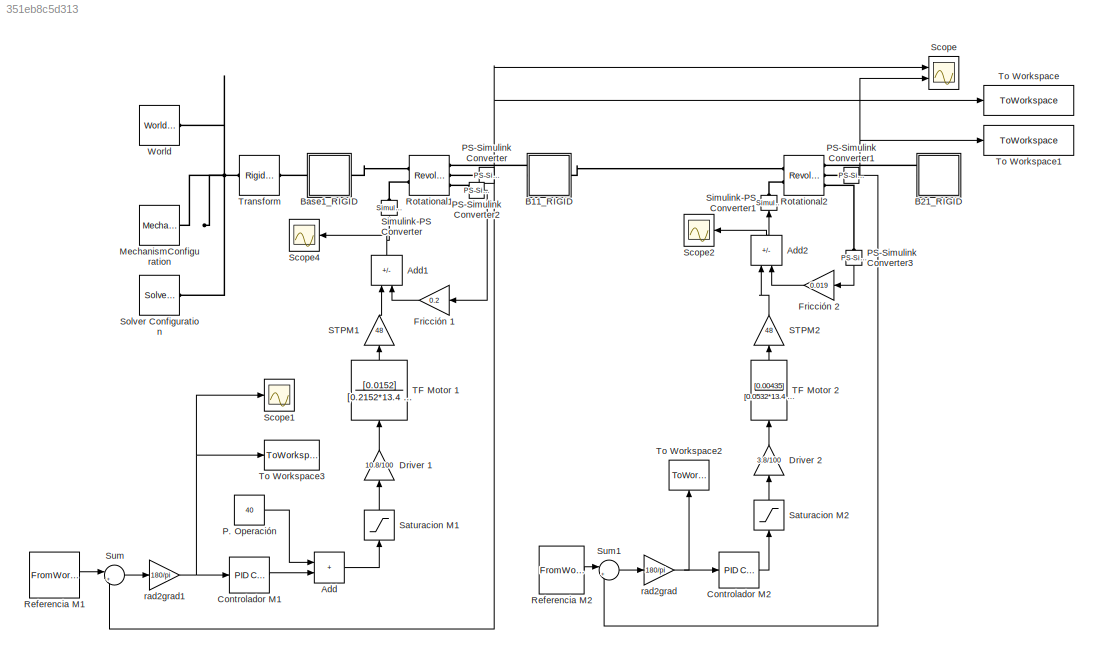
MODEL slx_351eb8c5d313
KIND model
CONFIG AbsTol = auto
CONFIG EnableMultiTasking = off
CONFIG FixedStep = auto
CONFIG MaxStep = auto
CONFIG MinStep = auto
CONFIG RelTol = 1e-3
CONFIG SampleTimeConstraint = Unconstrained
CONFIG SolverName = VariableStepAuto
CONFIG StartTime = 0.0
CONFIG StopTime = 20
WORKSPACE source: external: MATLAB File  (data not in archive)
BLOCK [Sum] Add
  IconShape = rectangular
  Ports = [2, 1]
BLOCK [Sum] Add1
  IconShape = rectangular
  Inputs = +-
  NameLocation = right
  Ports = [2, 1]
BLOCK [Sum] Add2
  IconShape = rectangular
  Inputs = +-
  NameLocation = right
  Ports = [2, 1]
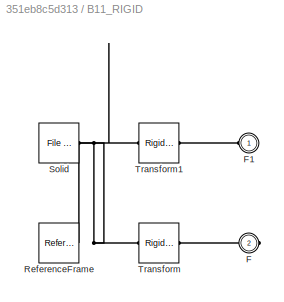
BLOCK [SubSystem] B11_RIGID
  Ports = [0, 0, 0, 0, 0, 1, 1]
  RequestExecContextInheritance = off
BLOCK [PMIOPort] B11_RIGID/F
  Port = 2
  Side = Right
BLOCK [PMIOPort] B11_RIGID/F1
  Side = Left
BLOCK [Reference] B11_RIGID/ReferenceFrame  REF=sm_lib/Frames and
Transforms/Reference
Frame
  Ports = [0, 0, 0, 0, 0, 0, 1]
  SourceBlock = sm_lib/Frames and\nTransforms/Reference\nFrame
  SourceProductBaseCode = MS
  SourceType = Reference\nFrame
BLOCK [Reference] B11_RIGID/Solid  REF=sm_lib/Body Elements/File Solid
  Ports = [0, 0, 0, 0, 0, 0, 1]
  SourceBlock = sm_lib/Body Elements/File Solid
  SourceProductBaseCode = MS
  SourceType = File Solid
BLOCK [Reference] B11_RIGID/Transform  REF=sm_lib/Frames and
Transforms/Rigid
Transform
  Ports = [0, 0, 0, 0, 0, 1, 1]
  SourceBlock = sm_lib/Frames and\nTransforms/Rigid\nTransform
  SourceProductBaseCode = MS
  SourceType = Rigid\nTransform
BLOCK [Reference] B11_RIGID/Transform1  REF=sm_lib/Frames and
Transforms/Rigid
Transform
  Ports = [0, 0, 0, 0, 0, 1, 1]
  SourceBlock = sm_lib/Frames and\nTransforms/Rigid\nTransform
  SourceProductBaseCode = MS
  SourceType = Rigid\nTransform
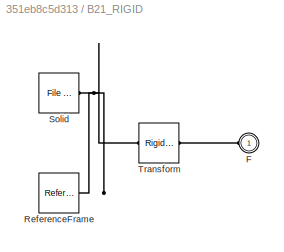
BLOCK [SubSystem] B21_RIGID
  Ports = [0, 0, 0, 0, 0, 1]
  RequestExecContextInheritance = off
BLOCK [PMIOPort] B21_RIGID/F
  Side = Left
BLOCK [Reference] B21_RIGID/ReferenceFrame  REF=sm_lib/Frames and
Transforms/Reference
Frame
  Ports = [0, 0, 0, 0, 0, 0, 1]
  SourceBlock = sm_lib/Frames and\nTransforms/Reference\nFrame
  SourceProductBaseCode = MS
  SourceType = Reference\nFrame
BLOCK [Reference] B21_RIGID/Solid  REF=sm_lib/Body Elements/File Solid
  Ports = [0, 0, 0, 0, 0, 0, 1]
  SourceBlock = sm_lib/Body Elements/File Solid
  SourceProductBaseCode = MS
  SourceType = File Solid
BLOCK [Reference] B21_RIGID/Transform  REF=sm_lib/Frames and
Transforms/Rigid
Transform
  Ports = [0, 0, 0, 0, 0, 1, 1]
  SourceBlock = sm_lib/Frames and\nTransforms/Rigid\nTransform
  SourceProductBaseCode = MS
  SourceType = Rigid\nTransform
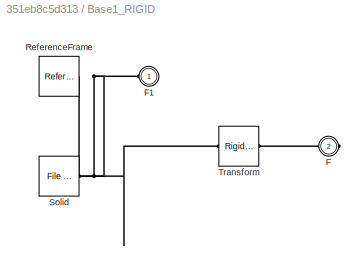
BLOCK [SubSystem] Base1_RIGID
  Ports = [0, 0, 0, 0, 0, 1, 1]
  RequestExecContextInheritance = off
BLOCK [PMIOPort] Base1_RIGID/F
  Port = 2
  Side = Right
BLOCK [PMIOPort] Base1_RIGID/F1
  Side = Left
BLOCK [Reference] Base1_RIGID/ReferenceFrame  REF=sm_lib/Frames and
Transforms/Reference
Frame
  Ports = [0, 0, 0, 0, 0, 0, 1]
  SourceBlock = sm_lib/Frames and\nTransforms/Reference\nFrame
  SourceProductBaseCode = MS
  SourceType = Reference\nFrame
BLOCK [Reference] Base1_RIGID/Solid  REF=sm_lib/Body Elements/File Solid
  Ports = [0, 0, 0, 0, 0, 0, 1]
  SourceBlock = sm_lib/Body Elements/File Solid
  SourceProductBaseCode = MS
  SourceType = File Solid
BLOCK [Reference] Base1_RIGID/Transform  REF=sm_lib/Frames and
Transforms/Rigid
Transform
  Ports = [0, 0, 0, 0, 0, 1, 1]
  SourceBlock = sm_lib/Frames and\nTransforms/Rigid\nTransform
  SourceProductBaseCode = MS
  SourceType = Rigid\nTransform
BLOCK [Reference] Controlador M1  REF=pid_lib/PID Controller
  Ports = [1, 1]
  SourceBlock = pid_lib/PID Controller
  SourceProductBaseCode = SL
  SourceType = PID 1dof
BLOCK [Reference] Controlador M2  REF=pid_lib/PID Controller
  Ports = [1, 1]
  SourceBlock = pid_lib/PID Controller
  SourceProductBaseCode = SL
  SourceType = PID 1dof
BLOCK [Gain] Driver 1
  Gain = 10.8/100
  NameLocation = right
BLOCK [Gain] Driver 2
  Gain = 3.8/100
  NameLocation = right
BLOCK [Gain] Fricción 1
  Gain = 0.2
  NameLocation = top
BLOCK [Gain] Fricción 2
  Gain = 0.019
  NameLocation = top
BLOCK [Reference] MechanismConfiguration  REF=sm_lib/Utilities/Mechanism
Configuration
  Ports = [0, 0, 0, 0, 0, 0, 1]
  SourceBlock = sm_lib/Utilities/Mechanism\nConfiguration
  SourceProductBaseCode = MS
  SourceType = Mechanism\nConfiguration
BLOCK [Constant] P. Operación
  Value = 40
BLOCK [Reference] PS-Simulink Converter  REF=nesl_utility/PS-Simulink
Converter
  Ports = [0, 1, 0, 0, 0, 1]
  SourceBlock = nesl_utility/PS-Simulink\nConverter
  SourceProductBaseCode = SS
  SourceType = PS-Simulink\nConverter
BLOCK [Reference] PS-Simulink Converter1  REF=nesl_utility/PS-Simulink
Converter
  Ports = [0, 1, 0, 0, 0, 1]
  SourceBlock = nesl_utility/PS-Simulink\nConverter
  SourceProductBaseCode = SS
  SourceType = PS-Simulink\nConverter
BLOCK [Reference] PS-Simulink Converter2  REF=nesl_utility/PS-Simulink
Converter
  Ports = [0, 1, 0, 0, 0, 1]
  SourceBlock = nesl_utility/PS-Simulink\nConverter
  SourceProductBaseCode = SS
  SourceType = PS-Simulink\nConverter
BLOCK [Reference] PS-Simulink Converter3  REF=nesl_utility/PS-Simulink
Converter
  NameLocation = left
  Ports = [0, 1, 0, 0, 0, 1]
  SourceBlock = nesl_utility/PS-Simulink\nConverter
  SourceProductBaseCode = SS
  SourceType = PS-Simulink\nConverter
BLOCK [FromWorkspace] Referencia M1
  VariableName = qarray1
BLOCK [FromWorkspace] Referencia M2
  VariableName = qarray2
BLOCK [Reference] Rotational1  REF=sm_lib/Joints/Revolute Joint
  Ports = [0, 0, 0, 0, 0, 2, 3]
  SourceBlock = sm_lib/Joints/Revolute Joint
  SourceProductBaseCode = MS
  SourceType = Revolute Joint
BLOCK [Reference] Rotational2  REF=sm_lib/Joints/Revolute Joint
  Ports = [0, 0, 0, 0, 0, 2, 3]
  SourceBlock = sm_lib/Joints/Revolute Joint
  SourceProductBaseCode = MS
  SourceType = Revolute Joint
BLOCK [Gain] STPM1
  Gain = 48
  NameLocation = right
BLOCK [Gain] STPM2
  Gain = 48
  NameLocation = right
BLOCK [Saturate] Saturacion M1
  LowerLimit = -100
  NameLocation = right
  UpperLimit = 100
BLOCK [Saturate] Saturacion M2
  LowerLimit = -100
  NameLocation = right
  UpperLimit = 100
BLOCK [Scope] Scope
  Floating = off
  NumInputPorts = 2
  Ports = [2]
  ScopeSpecificationString = Simulink.scopes.TimeScopeBlockCfg('CurrentConfiguration', extmgr.ConfigurationSet(extmgr.Configuration('Core','General UI',true),extmgr.Configuration('Core','Source UI',true),extmgr.Configuration('Sources','WiredSimulink',true),extmgr.Configuration('Visuals','Time Domain',true,'SerializedDisplays',{struct('MinYLimReal','-2.92547','MaxYLimReal','4.10934','YLabelReal','','MinYLimMag','0.00000','MaxY...<+1439ch>
BLOCK [Scope] Scope1
  Floating = off
  NumInputPorts = 1
  Ports = [1]
  ScopeSpecificationString = Simulink.scopes.TimeScopeBlockCfg('CurrentConfiguration', extmgr.ConfigurationSet(extmgr.Configuration('Core','General UI',true),extmgr.Configuration('Core','Source UI',true),extmgr.Configuration('Sources','WiredSimulink',true,'DataLoggingVariableName','ScopeData1'),extmgr.Configuration('Visuals','Time Domain',true,'SerializedDisplays',{struct('MinYLimReal','-11.63699','MaxYLimReal','5.55975','YLa...<+1443ch>
BLOCK [Scope] Scope2
  Floating = off
  NameLocation = top
  NumInputPorts = 1
  Ports = [1]
  ScopeSpecificationString = Simulink.scopes.TimeScopeBlockCfg('CurrentConfiguration', extmgr.ConfigurationSet(extmgr.Configuration('Core','General UI',true),extmgr.Configuration('Core','Source UI',true),extmgr.Configuration('Sources','WiredSimulink',true,'DataLoggingVariableName','ScopeData2'),extmgr.Configuration('Visuals','Time Domain',true,'SerializedDisplays',{struct('MinYLimReal','-0.00668','MaxYLimReal','0.01265','YLab...<+1462ch>
BLOCK [Scope] Scope4
  Floating = off
  NameLocation = top
  NumInputPorts = 1
  Ports = [1]
  ScopeSpecificationString = Simulink.scopes.TimeScopeBlockCfg('CurrentConfiguration', extmgr.ConfigurationSet(extmgr.Configuration('Core','General UI',true),extmgr.Configuration('Core','Source UI',true),extmgr.Configuration('Sources','WiredSimulink',true,'DataLoggingVariableName','ScopeData4'),extmgr.Configuration('Visuals','Time Domain',true,'SerializedDisplays',{struct('MinYLimReal','-0.10626','MaxYLimReal','-0.00776','YLa...<+1440ch>
BLOCK [Reference] Simulink-PS Converter  REF=nesl_utility/Simulink-PS
Converter
  NameLocation = right
  Ports = [1, 0, 0, 0, 0, 0, 1]
  SourceBlock = nesl_utility/Simulink-PS\nConverter
  SourceProductBaseCode = SS
  SourceType = Simulink-PS\nConverter
BLOCK [Reference] Simulink-PS Converter1  REF=nesl_utility/Simulink-PS
Converter
  NameLocation = right
  Ports = [1, 0, 0, 0, 0, 0, 1]
  SourceBlock = nesl_utility/Simulink-PS\nConverter
  SourceProductBaseCode = SS
  SourceType = Simulink-PS\nConverter
BLOCK [Reference] Solver Configuration  REF=nesl_utility/Solver
Configuration
  Ports = [0, 0, 0, 0, 0, 0, 1]
  SourceBlock = nesl_utility/Solver\nConfiguration
  SourceProductBaseCode = SS
  SourceType = Solver\nConfiguration
BLOCK [Sum] Sum
  Inputs = |+-
  Ports = [2, 1]
BLOCK [Sum] Sum1
  Inputs = |+-
  Ports = [2, 1]
BLOCK [TransferFcn] TF Motor 1
  Denominator = [0.2152*13.4 13.4]
  NameLocation = right
  Numerator = [0.0152]
BLOCK [TransferFcn] TF Motor 2
  Denominator = [0.0532*13.4 13.4]
  NameLocation = right
  Numerator = [0.00435]
BLOCK [ToWorkspace] To Workspace
  FixptAsFi = on
  MaxDataPoints = inf
  Ports = [1]
  SampleTime = -1
  SaveFormat = Timeseries
  VariableName = Theta1_sim
BLOCK [ToWorkspace] To Workspace1
  FixptAsFi = on
  MaxDataPoints = inf
  Ports = [1]
  SampleTime = -1
  SaveFormat = Timeseries
  VariableName = Theta2_sim
BLOCK [ToWorkspace] To Workspace2
  FixptAsFi = on
  MaxDataPoints = inf
  NameLocation = right
  Ports = [1]
  SampleTime = -1
  SaveFormat = Timeseries
  VariableName = E2
BLOCK [ToWorkspace] To Workspace3
  FixptAsFi = on
  MaxDataPoints = inf
  Ports = [1]
  SampleTime = -1
  SaveFormat = Timeseries
  VariableName = E1
BLOCK [Reference] Transform  REF=sm_lib/Frames and
Transforms/Rigid
Transform
  Ports = [0, 0, 0, 0, 0, 1, 1]
  SourceBlock = sm_lib/Frames and\nTransforms/Rigid\nTransform
  SourceProductBaseCode = MS
  SourceType = Rigid\nTransform
BLOCK [Reference] World  REF=sm_lib/Frames and
Transforms/World Frame
  Ports = [0, 0, 0, 0, 0, 0, 1]
  SourceBlock = sm_lib/Frames and\nTransforms/World Frame
  SourceProductBaseCode = MS
  SourceType = World Frame
BLOCK [Gain] rad2grad
  Gain = 180/pi
BLOCK [Gain] rad2grad1
  Gain = 180/pi
NET Add1:1 -> Scope4:1, Simulink-PS Converter:1
NET Add2:1 -> Scope2:1, Simulink-PS Converter1:1
LINE Add:1 -> Saturacion M1:1
LINE Controlador M1:1 -> Add:2
LINE Controlador M2:1 -> Saturacion M2:1
LINE Driver 1:1 -> TF Motor 1:1
LINE Driver 2:1 -> TF Motor 2:1
LINE Fricción 1:1 -> Add1:2
LINE Fricción 2:1 -> Add2:2
LINE P. Operación:1 -> Add:1
NET PS-Simulink Converter1:1 -> Scope:2, Sum1:2, To Workspace1:1
LINE PS-Simulink Converter2:1 -> Fricción 1:1
LINE PS-Simulink Converter3:1 -> Fricción 2:1
NET PS-Simulink Converter:1 -> Scope:1, Sum:2, To Workspace:1
LINE Referencia M1:1 -> Sum:1
LINE Referencia M2:1 -> Sum1:1
LINE STPM1:1 -> Add1:1
LINE STPM2:1 -> Add2:1
LINE Saturacion M1:1 -> Driver 1:1
LINE Saturacion M2:1 -> Driver 2:1
LINE Sum1:1 -> rad2grad:1
LINE Sum:1 -> rad2grad1:1
LINE TF Motor 1:1 -> STPM1:1
LINE TF Motor 2:1 -> STPM2:1
NET rad2grad1:1 -> Controlador M1:1, Scope1:1, To Workspace3:1
NET rad2grad:1 -> Controlador M2:1, To Workspace2:1
PLINE B11_RIGID/F1:RConn1 -- B11_RIGID/Transform1:RConn1
PLINE B11_RIGID/F:RConn1 -- B11_RIGID/Transform:RConn1
PNET net1: B11_RIGID/ReferenceFrame:RConn1 -- B11_RIGID/Solid:RConn1 -- B11_RIGID/Transform1:LConn1 -- B11_RIGID/Transform:LConn1
PLINE B11_RIGID:LConn1 -- Rotational1:RConn1
PLINE B11_RIGID:RConn1 -- Rotational2:LConn1
PLINE B21_RIGID/F:RConn1 -- B21_RIGID/Transform:RConn1
PNET net2: B21_RIGID/ReferenceFrame:RConn1 -- B21_RIGID/Solid:RConn1 -- B21_RIGID/Transform:LConn1
PLINE B21_RIGID:LConn1 -- Rotational2:RConn1
PNET net3: Base1_RIGID/F1:RConn1 -- Base1_RIGID/ReferenceFrame:RConn1 -- Base1_RIGID/Solid:RConn1 -- Base1_RIGID/Transform:LConn1
PLINE Base1_RIGID/F:RConn1 -- Base1_RIGID/Transform:RConn1
PLINE Base1_RIGID:LConn1 -- Transform:RConn1
PLINE Base1_RIGID:RConn1 -- Rotational1:LConn1
PNET net4: MechanismConfiguration:RConn1 -- Solver Configuration:RConn1 -- Transform:LConn1 -- World:RConn1
PLINE PS-Simulink Converter1:LConn1 -- Rotational2:RConn2
PLINE PS-Simulink Converter2:LConn1 -- Rotational1:RConn3
PLINE PS-Simulink Converter3:LConn1 -- Rotational2:RConn3
PLINE PS-Simulink Converter:LConn1 -- Rotational1:RConn2
PLINE Rotational1:LConn2 -- Simulink-PS Converter:RConn1
PLINE Rotational2:LConn2 -- Simulink-PS Converter1:RConn1
note: NET lines group one-source signal fan-out (src -> all destinations, sorted); 1:1 wires keep LINE; PNET lines group multi-terminal physical nets as a canonical sorted terminal list (undirected conserving connections); 2-terminal nets keep the pairwise PLINE form
